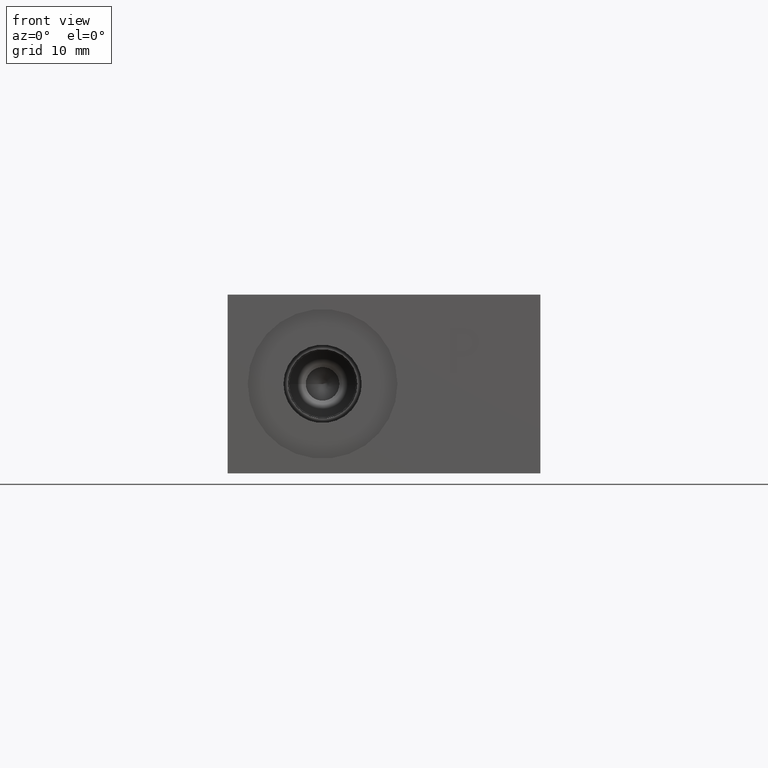
[diagram: clean part render]
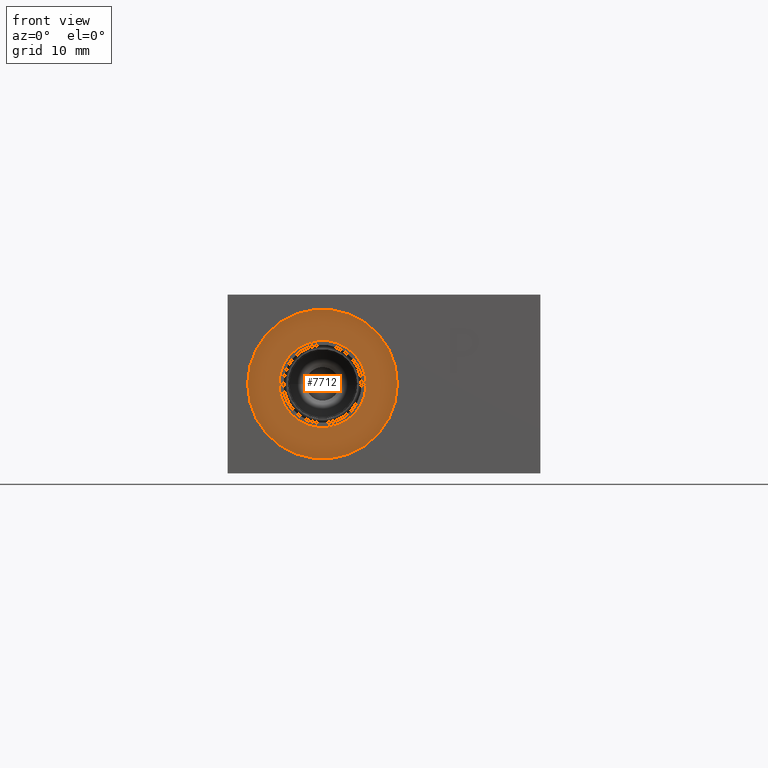
[diagram: same view with one face highlighted and labeled with its STEP entity id]
A machine part, front view. The second image highlights one B-rep face of the part: STEP entity #7712.
In plain terms, the highlighted planar face has unit normal (0, -1, 0).
Its self-contained STEP definition (entity closure, byte-faithful):
#99=CIRCLE('',#8082,10.6426);
#100=CIRCLE('',#8083,6.1976);
#158=FACE_BOUND('',#1256,.T.);
#817=FACE_OUTER_BOUND('',#1255,.T.);
#1255=EDGE_LOOP('',(#6623));
#1256=EDGE_LOOP('',(#6624));
#3585=VERTEX_POINT('',#12859);
#3586=VERTEX_POINT('',#12861);
#4613=EDGE_CURVE('',#3585,#3585,#99,.T.);
#4614=EDGE_CURVE('',#3586,#3586,#100,.T.);
#6623=ORIENTED_EDGE('',*,*,#4613,.T.);
#6624=ORIENTED_EDGE('',*,*,#4614,.F.);
#6998=PLANE('',#8081);
#7712=ADVANCED_FACE('',(#817,#158),#6998,.T.);
#8081=AXIS2_PLACEMENT_3D('',#12858,#9571,#9572);
#8082=AXIS2_PLACEMENT_3D('',#12860,#9573,#9574);
#8083=AXIS2_PLACEMENT_3D('',#12862,#9575,#9576);
#9571=DIRECTION('center_axis',(0.,-1.,0.));
#9572=DIRECTION('ref_axis',(1.,0.,0.));
#9573=DIRECTION('center_axis',(0.,-1.,0.));
#9574=DIRECTION('ref_axis',(1.,0.,0.));
#9575=DIRECTION('center_axis',(0.,-1.,0.));
#9576=DIRECTION('ref_axis',(1.,0.,0.));
#12858=CARTESIAN_POINT('Origin',(13.4874,0.7874,12.7));
#12859=CARTESIAN_POINT('',(2.8448,0.7874,12.7));
#12860=CARTESIAN_POINT('Origin',(13.4874,0.7874,12.7));
#12861=CARTESIAN_POINT('',(7.2898,0.7874,12.7));
#12862=CARTESIAN_POINT('Origin',(13.4874,0.7874,12.7));